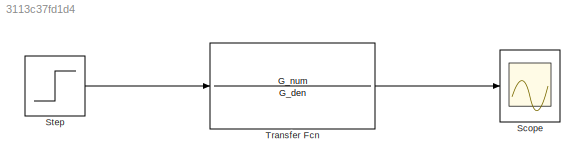
MODEL slx_3113c37fd1d4
KIND model
CONFIG AbsTol = auto
CONFIG EnableMultiTasking = off
CONFIG FixedStep = auto
CONFIG MaxStep = auto
CONFIG MinStep = auto
CONFIG RelTol = 1e-3
CONFIG SampleTimeConstraint = Unconstrained
CONFIG SolverName = VariableStepAuto
CONFIG StartTime = 0.0
CONFIG StopTime = 20
BLOCK [Scope] Scope
  Floating = off
  NumInputPorts = 1
  ScopeSpecificationString = Simulink.scopes.TimeScopeBlockCfg('CurrentConfiguration', extmgr.ConfigurationSet(extmgr.Configuration('Core','General UI',true),extmgr.Configuration('Core','Source UI',true),extmgr.Configuration('Sources','WiredSimulink',true,'SampleTime','0.1'),extmgr.Configuration('Visuals','Time Domain',true,'SerializedDisplays',{struct('MinYLimReal','-89.98252','MaxYLimReal','69.71036','YLabelReal','Amplitude...<+1515ch>
BLOCK [Step] Step
  SampleTime = 0
  Time = 0.1
BLOCK [TransferFcn] Transfer Fcn
  Denominator = G_den
  Numerator = G_num
LINE Step:1 -> Transfer Fcn:1
LINE Transfer Fcn:1 -> Scope:1
